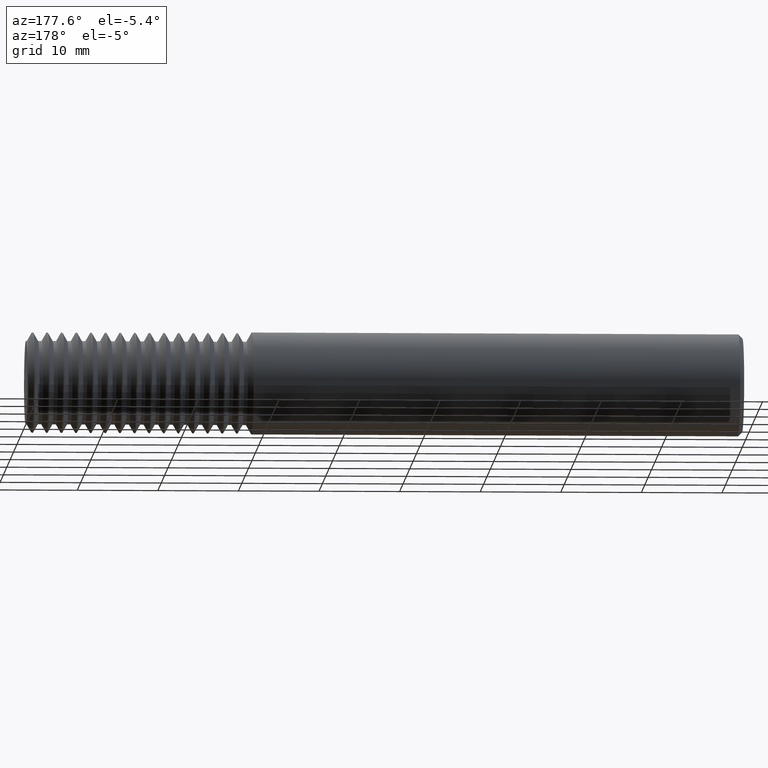
[diagram: clean part render]
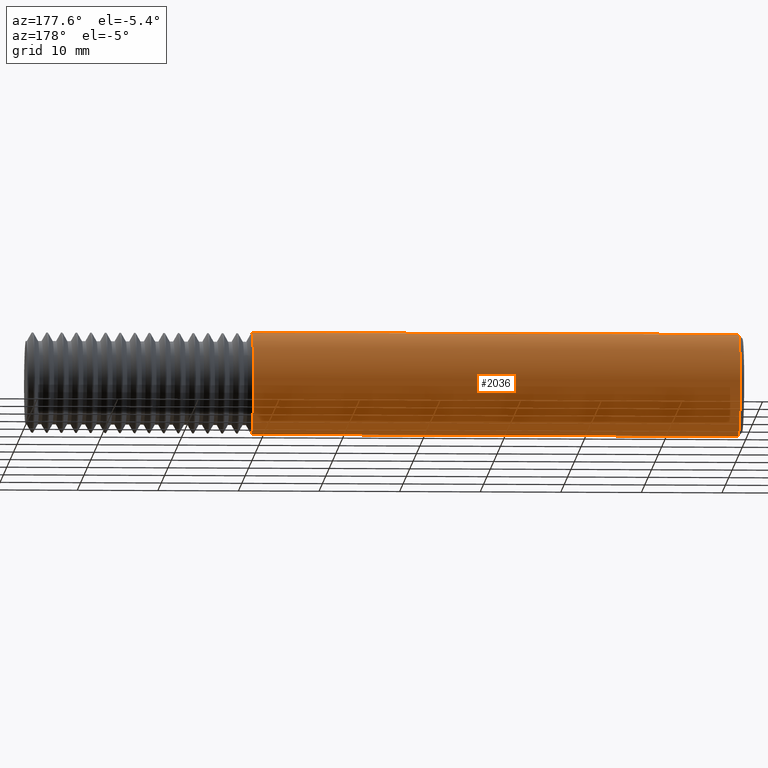
[diagram: same view with one face highlighted and labeled with its STEP entity id]
A machine part, auxiliary view. The second image highlights one B-rep face of the part: STEP entity #2036.
In plain terms, the highlighted cylindrical surface (partial cylindrical patch) has radius 6.3462 mm, axis along (-1, -0, -0).
Its self-contained STEP definition (entity closure, byte-faithful):
#68 = DIRECTION ( 'NONE',  ( 1.000000000000000000, 0.000000000000000000, 0.000000000000000000 ) ) ;
#76 = EDGE_CURVE ( 'NONE', #1452, #2631, #1556, .T. ) ;
#99 = AXIS2_PLACEMENT_3D ( 'NONE', #1101, #68, #1920 ) ;
#194 = EDGE_CURVE ( 'NONE', #3115, #2469, #790, .T. ) ;
#443 = CARTESIAN_POINT ( 'NONE',  ( 0.000000000000000000, 0.000000000000000000, 0.2498499999999999888 ) ) ;
#588 = CARTESIAN_POINT ( 'NONE',  ( 0.02000000000000009409, 0.000000000000000000, -0.2498499999999999888 ) ) ;
#640 = EDGE_CURVE ( 'NONE', #3115, #1452, #1865, .T. ) ;
#642 = DIRECTION ( 'NONE',  ( -1.000000000000000000, -0.000000000000000000, -0.000000000000000000 ) ) ;
#790 = CIRCLE ( 'NONE', #953, 0.2498499999999999888 ) ;
#833 = CARTESIAN_POINT ( 'NONE',  ( 2.397170972285072477, 3.059780027669662547E-17, -0.2498500000000000720 ) ) ;
#950 = CARTESIAN_POINT ( 'NONE',  ( 0.02000000000000009409, 3.059780027669661931E-17, 0.2498499999999999888 ) ) ;
#953 = AXIS2_PLACEMENT_3D ( 'NONE', #1605, #2928, #2156 ) ;
#1101 = CARTESIAN_POINT ( 'NONE',  ( 0.02000000000000009409, 0.000000000000000000, 0.000000000000000000 ) ) ;
#1143 = VECTOR ( 'NONE', #2003, 39.37007874015748143 ) ;
#1150 = ORIENTED_EDGE ( 'NONE', *, *, #640, .T. ) ;
#1341 = ORIENTED_EDGE ( 'NONE', *, *, #76, .T. ) ;
#1369 = CARTESIAN_POINT ( 'NONE',  ( 2.397170972285072477, 0.000000000000000000, 0.2498500000000000720 ) ) ;
#1452 = VERTEX_POINT ( 'NONE', #588 ) ;
#1512 = ORIENTED_EDGE ( 'NONE', *, *, #2198, .F. ) ;
#1556 = CIRCLE ( 'NONE', #99, 0.2498499999999999888 ) ;
#1605 = CARTESIAN_POINT ( 'NONE',  ( 2.397170972285072477, 0.000000000000000000, 0.000000000000000000 ) ) ;
#1865 = LINE ( 'NONE', #2248, #2426 ) ;
#1920 = DIRECTION ( 'NONE',  ( 0.000000000000000000, 0.000000000000000000, -1.000000000000000000 ) ) ;
#2003 = DIRECTION ( 'NONE',  ( -1.000000000000000000, -0.000000000000000000, -0.000000000000000000 ) ) ;
#2036 = ADVANCED_FACE ( 'NONE', ( #2180 ), #2953, .T. ) ;
#2156 = DIRECTION ( 'NONE',  ( 0.000000000000000000, 0.000000000000000000, 1.000000000000000000 ) ) ;
#2180 = FACE_OUTER_BOUND ( 'NONE', #2951, .T. ) ;
#2198 = EDGE_CURVE ( 'NONE', #2469, #2631, #2466, .T. ) ;
#2248 = CARTESIAN_POINT ( 'NONE',  ( 0.000000000000000000, 3.059780027669661931E-17, -0.2498499999999999888 ) ) ;
#2275 = AXIS2_PLACEMENT_3D ( 'NONE', #2715, #642, #2383 ) ;
#2383 = DIRECTION ( 'NONE',  ( 0.000000000000000000, 0.000000000000000000, 1.000000000000000000 ) ) ;
#2426 = VECTOR ( 'NONE', #3153, 39.37007874015748143 ) ;
#2466 = LINE ( 'NONE', #443, #1143 ) ;
#2469 = VERTEX_POINT ( 'NONE', #1369 ) ;
#2631 = VERTEX_POINT ( 'NONE', #950 ) ;
#2705 = ORIENTED_EDGE ( 'NONE', *, *, #194, .F. ) ;
#2715 = CARTESIAN_POINT ( 'NONE',  ( 0.000000000000000000, 0.000000000000000000, 0.000000000000000000 ) ) ;
#2928 = DIRECTION ( 'NONE',  ( 1.000000000000000000, 0.000000000000000000, 0.000000000000000000 ) ) ;
#2951 = EDGE_LOOP ( 'NONE', ( #2705, #1150, #1341, #1512 ) ) ;
#2953 = CYLINDRICAL_SURFACE ( 'NONE', #2275, 0.2498499999999999888 ) ;
#3115 = VERTEX_POINT ( 'NONE', #833 ) ;
#3153 = DIRECTION ( 'NONE',  ( -1.000000000000000000, -0.000000000000000000, -0.000000000000000000 ) ) ;